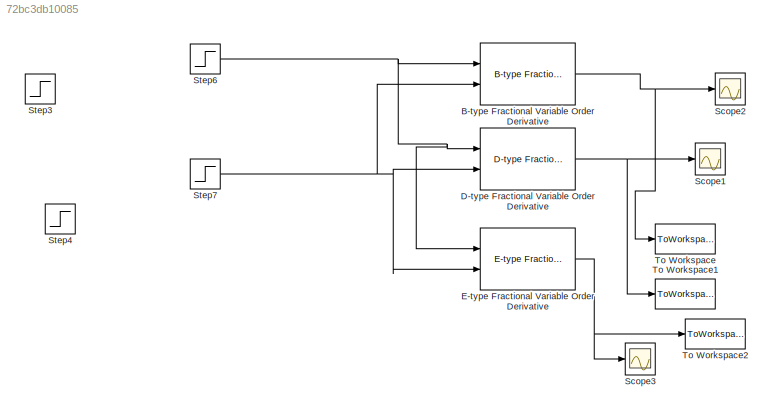
MODEL slx_72bc3db10085
KIND model
CONFIG AbsTol = auto
CONFIG EnableMultiTasking = off
CONFIG FixedStep = auto
CONFIG MaxStep = auto
CONFIG MinStep = auto
CONFIG RelTol = 1e-3
CONFIG SampleTimeConstraint = Unconstrained
CONFIG Solver = VariableStepAuto
CONFIG SolverName = VariableStepAuto
CONFIG StartTime = 0.0
CONFIG StopTime = 2000.0
BLOCK [Reference] B-type Fractional Variable Order Derivative  REF=voderiv/B-type Fractional Variable Order Derivative
  Ports = [2, 1]
  SourceBlock = voderiv/B-type Fractional Variable Order Derivative
  SourceType = Variable Fractional Order Derivative 2nd type
BLOCK [Reference] D-type Fractional Variable Order Derivative  REF=voderiv/D-type Fractional Variable Order Derivative
  Ports = [2, 1]
  SourceBlock = voderiv/D-type Fractional Variable Order Derivative
  SourceType = Variable Fractional Order Derivative 4th type
BLOCK [Reference] E-type Fractional Variable Order Derivative  REF=voderiv/E-type Fractional Variable Order Derivative
  Ports = [2, 1]
  SourceBlock = voderiv/E-type Fractional Variable Order Derivative
  SourceType = Variable Fractional Order Derivative 5th type
BLOCK [Scope] Scope1
  Floating = off
  NumInputPorts = 1
  Ports = [1]
  ScopeSpecificationString = Simulink.scopes.TimeScopeBlockCfg('CurrentConfiguration', extmgr.ConfigurationSet(extmgr.Configuration('Core','General UI',true),extmgr.Configuration('Core','Source UI',true),extmgr.Configuration('Sources','WiredSimulink',true,'DataLoggingVariableName','ScopeData1'),extmgr.Configuration('Visuals','Time Domain',true,'SerializedDisplays',{struct('MinYLimReal','-1195.254','MaxYLimReal','10996.88604',...<+1504ch>
BLOCK [Scope] Scope2
  Floating = off
  NumInputPorts = 1
  Ports = [1]
  ScopeSpecificationString = Simulink.scopes.TimeScopeBlockCfg('CurrentConfiguration', extmgr.ConfigurationSet(extmgr.Configuration('Core','General UI',true),extmgr.Configuration('Core','Source UI',true),extmgr.Configuration('Sources','WiredSimulink',true),extmgr.Configuration('Visuals','Time Domain',true,'SerializedDisplays',{struct('MinYLimReal','-1162.68395','MaxYLimReal','10703.75553','YLabelReal','','MinYLimMag','  0.000...<+1468ch>
BLOCK [Scope] Scope3
  Floating = off
  NumInputPorts = 1
  Ports = [1]
  ScopeSpecificationString = Simulink.scopes.TimeScopeBlockCfg('CurrentConfiguration', extmgr.ConfigurationSet(extmgr.Configuration('Core','General UI',true),extmgr.Configuration('Core','Source UI',true),extmgr.Configuration('Sources','WiredSimulink',true,'DataLoggingVariableName','ScopeData1','DataLoggingLimitDataPoints',true,'DataLoggingSaveFormat','Array','DataLoggingDecimation','1','DataLoggingDecimateData',true),extmgr.C...<+1582ch>
BLOCK [Step] Step3
  After = 500/sqrt(10)*(6.2051e-5)
  Before = 500/sqrt(10)*(9.9878e-5)
  SampleTime = 0
  Time = 500
BLOCK [Step] Step4
  After = -1.2686/2
  Before = -0.5
  SampleTime = 0
  Time = 500
BLOCK [Step] Step6
  After = 500/(sqrt(rho*specificHeat/k)/a1)
  Before = 500/(sqrt(rho*specificHeat/k)/a0)
  SampleTime = 0
  Time = 1000
BLOCK [Step] Step7
  After = -alpha1/2
  Before = -alpha0/2
  SampleTime = 0
  Time = 1000
BLOCK [ToWorkspace] To Workspace
  Decimation = 10
  FixptAsFi = on
  MaxDataPoints = inf
  Ports = [1]
  SampleTime = 0.025
  Save2DSignal = 3-D array (concatenate along third dimension)
  VariableName = B_def_output
BLOCK [ToWorkspace] To Workspace1
  Decimation = 10
  FixptAsFi = on
  MaxDataPoints = inf
  Ports = [1]
  SampleTime = 0.025
  Save2DSignal = 3-D array (concatenate along third dimension)
  VariableName = D_def_output
BLOCK [ToWorkspace] To Workspace2
  Decimation = 10
  FixptAsFi = on
  MaxDataPoints = inf
  Ports = [1]
  SampleTime = 0.025
  Save2DSignal = 3-D array (concatenate along third dimension)
  VariableName = E_def_output
NET B-type Fractional Variable Order Derivative:1 -> Scope2:1, To Workspace:1
NET D-type Fractional Variable Order Derivative:1 -> Scope1:1, To Workspace1:1
NET E-type Fractional Variable Order Derivative:1 -> Scope3:1, To Workspace2:1
NET Step6:1 -> B-type Fractional Variable Order Derivative:1, D-type Fractional Variable Order Derivative:1, E-type Fractional Variable Order Derivative:1
NET Step7:1 -> B-type Fractional Variable Order Derivative:2, D-type Fractional Variable Order Derivative:2, E-type Fractional Variable Order Derivative:2
note: NET lines group one-source signal fan-out (src -> all destinations, sorted); 1:1 wires keep LINE
